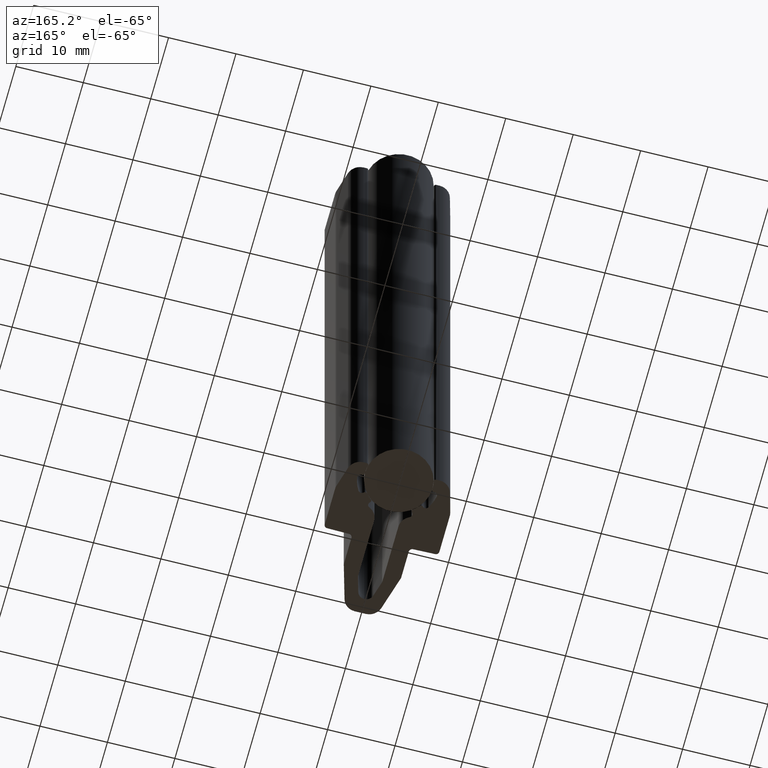
[diagram: clean part render]
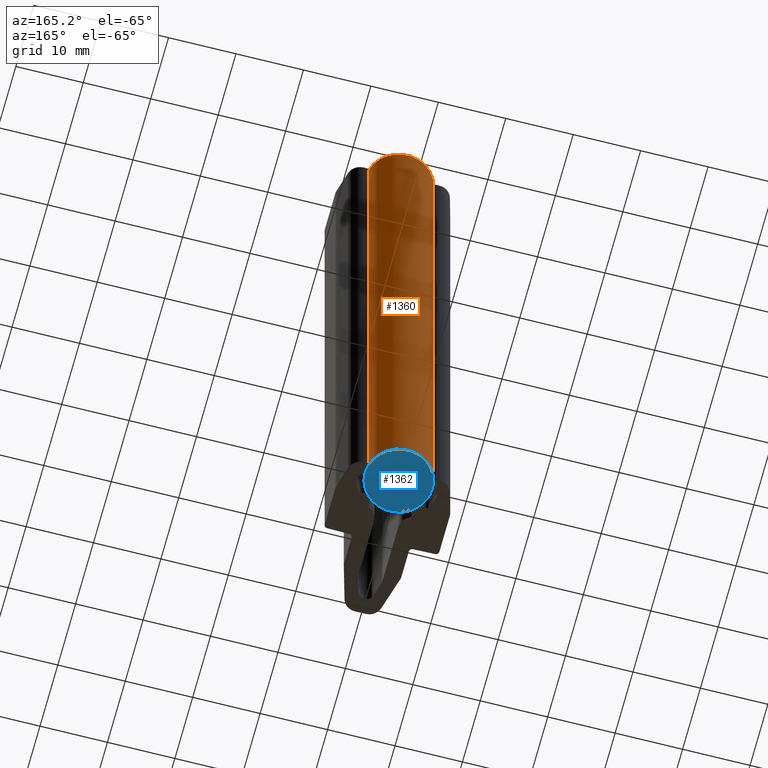
[diagram: same view with the hole feature highlighted: cylindrical wall and planar end face, labeled with their STEP entity ids]
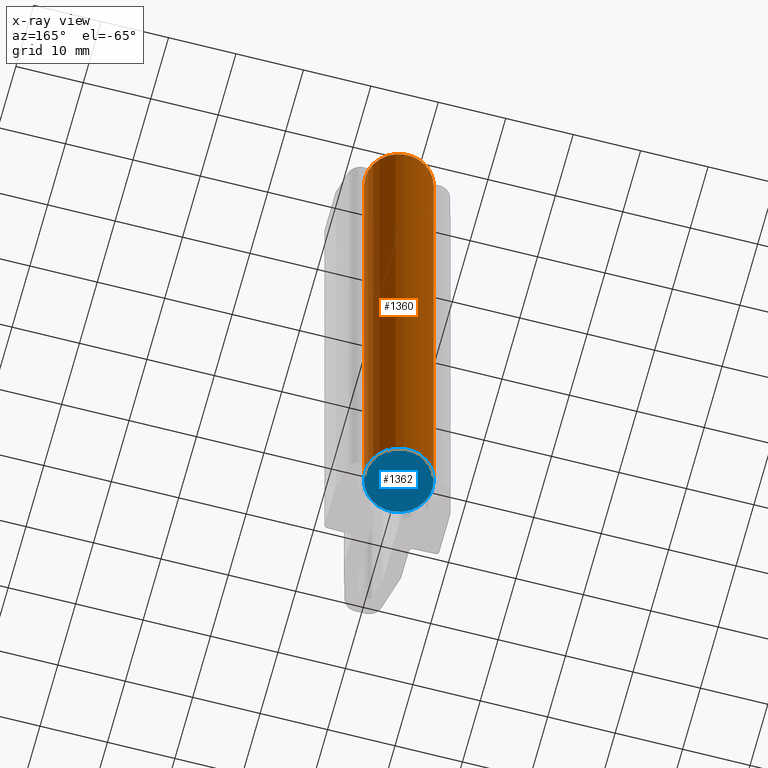
[diagram: x-ray of the same camera — body ghosted, the hole faces saturated]
A machine part, auxiliary view. The highlighted faces form one hole feature of diameter 10 mm: the cylindrical wall (entity #1360, orange) and its adjacent planar end face (entity #1362, blue) — they share a circular edge in the B-rep.
The next image is the same camera in x-ray (body ghosted, the hole faces saturated) — the bore reads through the body.
Wall:
#55=CYLINDRICAL_SURFACE('',#1532,5.);
#121=FACE_OUTER_BOUND('',#189,.T.);
#189=EDGE_LOOP('',(#1192,#1193,#1194,#1195));
#301=LINE('',#2334,#411);
#411=VECTOR('',#1942,5.);
#492=CIRCLE('',#1533,5.);
#493=CIRCLE('',#1534,5.);
#620=VERTEX_POINT('',#2331);
#621=VERTEX_POINT('',#2333);
#811=EDGE_CURVE('',#620,#620,#492,.T.);
#812=EDGE_CURVE('',#620,#621,#301,.T.);
#813=EDGE_CURVE('',#621,#621,#493,.T.);
#1192=ORIENTED_EDGE('',*,*,#811,.F.);
#1193=ORIENTED_EDGE('',*,*,#812,.T.);
#1194=ORIENTED_EDGE('',*,*,#813,.F.);
#1195=ORIENTED_EDGE('',*,*,#812,.F.);
#1360=ADVANCED_FACE('',(#121),#55,.T.);
#1532=AXIS2_PLACEMENT_3D('',#2330,#1938,#1939);
#1533=AXIS2_PLACEMENT_3D('',#2332,#1940,#1941);
#1534=AXIS2_PLACEMENT_3D('',#2335,#1943,#1944);
#1938=DIRECTION('center_axis',(0.,0.,-1.));
#1939=DIRECTION('ref_axis',(1.,0.,0.));
#1940=DIRECTION('center_axis',(0.,0.,-1.));
#1941=DIRECTION('ref_axis',(1.,0.,0.));
#1942=DIRECTION('',(0.,0.,1.));
#1943=DIRECTION('center_axis',(0.,0.,1.));
#1944=DIRECTION('ref_axis',(1.,0.,0.));
#2330=CARTESIAN_POINT('Origin',(5.32907051820075E-14,1.77635683940025E-14,
50.));
#2331=CARTESIAN_POINT('',(-4.99999999999995,1.83758917935762E-14,-50.));
#2332=CARTESIAN_POINT('Origin',(5.32907051820075E-14,1.77635683940025E-14,
-50.));
#2333=CARTESIAN_POINT('',(-4.99999999999995,1.83758917935762E-14,50.));
#2334=CARTESIAN_POINT('',(-4.99999999999995,1.83758917935762E-14,50.));
#2335=CARTESIAN_POINT('Origin',(5.32907051820075E-14,1.77635683940025E-14,
50.));
End face:
#123=FACE_OUTER_BOUND('',#191,.T.);
#191=EDGE_LOOP('',(#1197));
#492=CIRCLE('',#1533,5.);
#620=VERTEX_POINT('',#2331);
#811=EDGE_CURVE('',#620,#620,#492,.T.);
#1197=ORIENTED_EDGE('',*,*,#811,.T.);
#1224=PLANE('',#1536);
#1362=ADVANCED_FACE('',(#123),#1224,.F.);
#1533=AXIS2_PLACEMENT_3D('',#2332,#1940,#1941);
#1536=AXIS2_PLACEMENT_3D('',#2337,#1947,#1948);
#1940=DIRECTION('center_axis',(0.,0.,-1.));
#1941=DIRECTION('ref_axis',(1.,0.,0.));
#1947=DIRECTION('center_axis',(0.,0.,1.));
#1948=DIRECTION('ref_axis',(1.,0.,0.));
#2331=CARTESIAN_POINT('',(-4.99999999999995,1.83758917935762E-14,-50.));
#2332=CARTESIAN_POINT('Origin',(5.32907051820075E-14,1.77635683940025E-14,
-50.));
#2337=CARTESIAN_POINT('Origin',(5.55111512312578E-14,1.77635683940025E-14,
-50.));